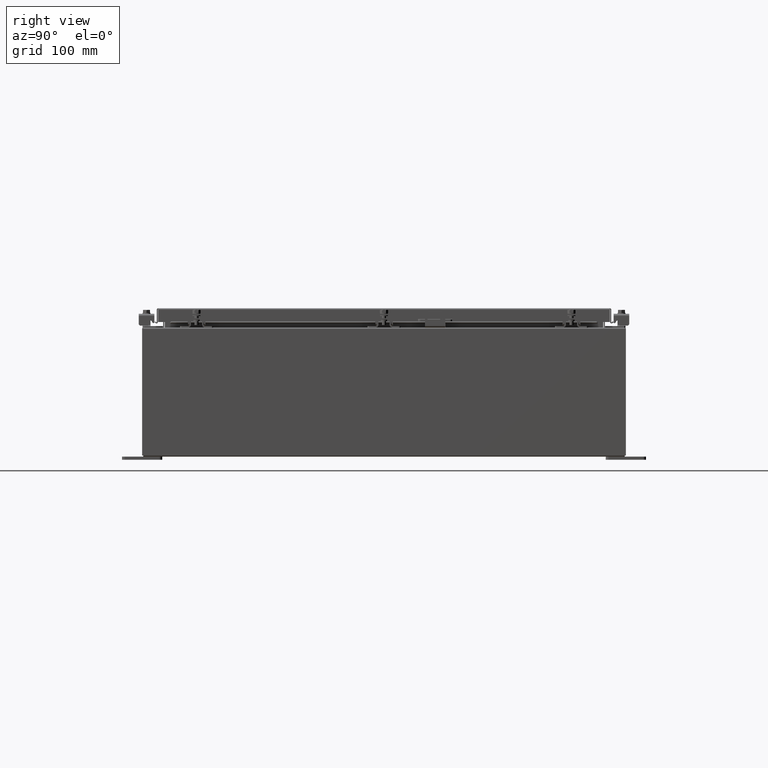
[diagram: clean part render]
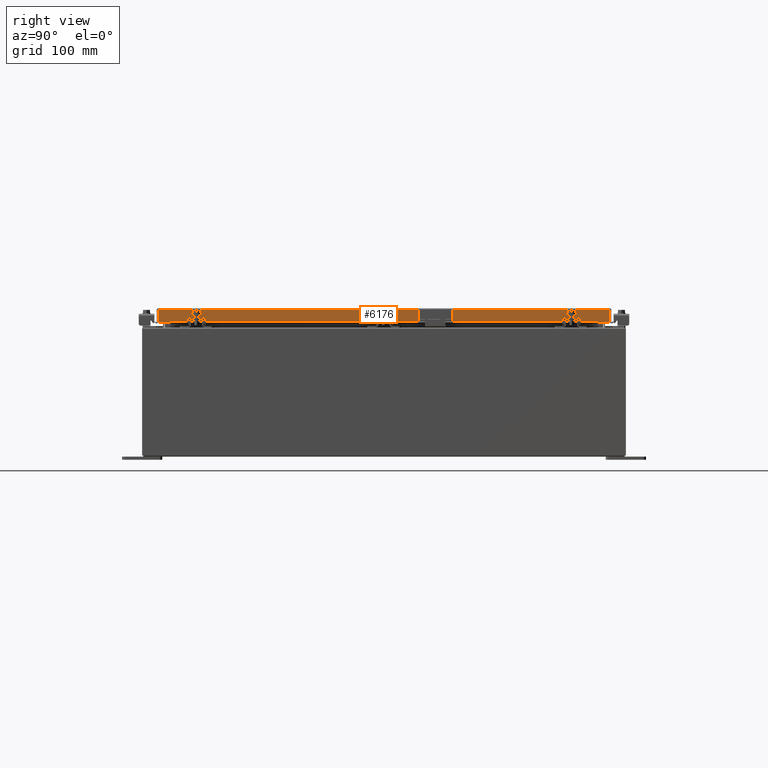
[diagram: same view with one face highlighted and labeled with its STEP entity id]
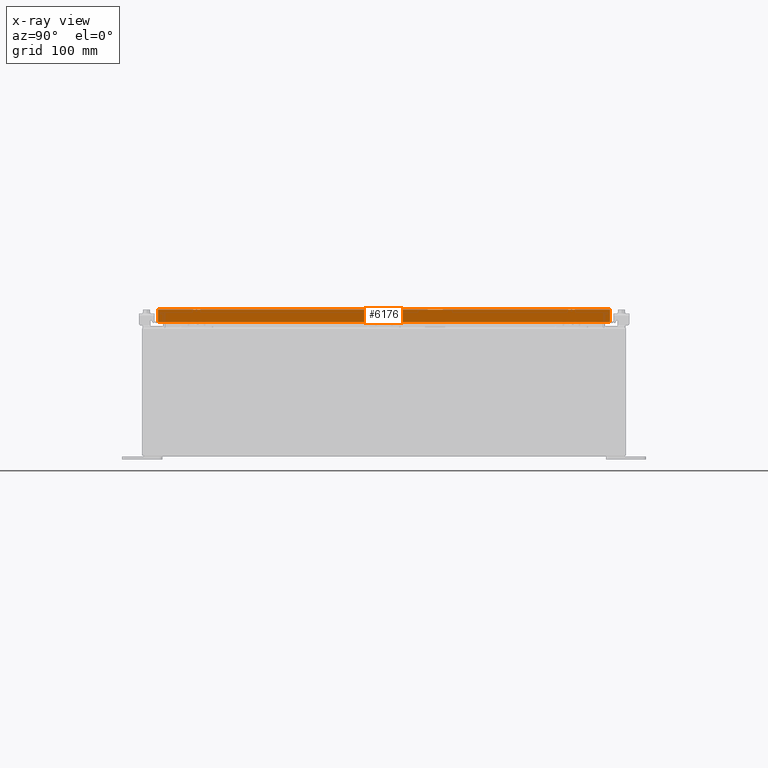
[diagram: x-ray of the same camera — body ghosted, the highlighted face saturated]
A machine part, right view. The second image highlights one B-rep face of the part: STEP entity #6176.
The next image is the same camera in x-ray: the body ghosted, the highlighted face saturated — about 0% of this face is hidden behind the body in this view.
In plain terms, the highlighted planar face has unit normal (1, 0, 0).
Its self-contained STEP definition (entity closure, byte-faithful):
#2490 = AXIS2_PLACEMENT_3D ( 'NONE', #21424, #3778, #27253 ) ;
#2683 = DIRECTION ( 'NONE',  ( 0.0000000000000000000, -1.000000000000000000, 0.0000000000000000000 ) ) ;
#2766 = CARTESIAN_POINT ( 'NONE',  ( 14.07799999999999400, -13.25515786437626700, -0.8500000000000013100 ) ) ;
#2773 = VERTEX_POINT ( 'NONE', #33051 ) ;
#3778 = DIRECTION ( 'NONE',  ( 1.000000000000000000, 0.0000000000000000000, 2.818880942772360100E-015 ) ) ;
#5428 = EDGE_CURVE ( 'NONE', #2773, #14975, #23974, .T. ) ;
#5608 = VERTEX_POINT ( 'NONE', #22509 ) ;
#6082 = VERTEX_POINT ( 'NONE', #21941 ) ;
#6176 = ADVANCED_FACE ( 'NONE', ( #32352 ), #9486, .T. ) ;
#7777 = LINE ( 'NONE', #25138, #38469 ) ;
#7814 = VECTOR ( 'NONE', #32306, 39.37007874015748100 ) ;
#7959 = DIRECTION ( 'NONE',  ( 0.0000000000000000000, -1.000000000000000000, 0.0000000000000000000 ) ) ;
#9323 = VERTEX_POINT ( 'NONE', #2766 ) ;
#9486 = PLANE ( 'NONE',  #2490 ) ;
#9591 = EDGE_CURVE ( 'NONE', #6082, #2773, #25347, .T. ) ;
#11562 = ORIENTED_EDGE ( 'NONE', *, *, #5428, .T. ) ;
#11653 = EDGE_CURVE ( 'NONE', #5608, #14975, #21071, .T. ) ;
#12250 = VECTOR ( 'NONE', #30606, 39.37007874015748100 ) ;
#12863 = CARTESIAN_POINT ( 'NONE',  ( 14.07800000000000300, 14.00515786437626400, 1.377425142304046000E-013 ) ) ;
#12959 = ORIENTED_EDGE ( 'NONE', *, *, #27103, .F. ) ;
#13039 = VECTOR ( 'NONE', #7959, 39.37007874015748100 ) ;
#13694 = EDGE_CURVE ( 'NONE', #9323, #5608, #7777, .T. ) ;
#14975 = VERTEX_POINT ( 'NONE', #34072 ) ;
#15502 = VERTEX_POINT ( 'NONE', #27479 ) ;
#15650 = LINE ( 'NONE', #29436, #7814 ) ;
#15838 = DIRECTION ( 'NONE',  ( -2.818880942772360100E-015, -6.982962677686265900E-015, 1.000000000000000000 ) ) ;
#16298 = DIRECTION ( 'NONE',  ( 0.0000000000000000000, -1.000000000000000000, 0.0000000000000000000 ) ) ;
#17440 = VECTOR ( 'NONE', #15838, 39.37007874015748100 ) ;
#17839 = ORIENTED_EDGE ( 'NONE', *, *, #13694, .F. ) ;
#21071 = LINE ( 'NONE', #36494, #12250 ) ;
#21424 = CARTESIAN_POINT ( 'NONE',  ( 14.07800000000000300, 0.0000000000000000000, 3.994501956836086900E-014 ) ) ;
#21941 = CARTESIAN_POINT ( 'NONE',  ( 14.07800000000000500, 14.00515786437626900, -0.8499999999999996400 ) ) ;
#22509 = CARTESIAN_POINT ( 'NONE',  ( 14.07800000000000500, -14.00515786437626900, -0.8499999999999996400 ) ) ;
#23063 = VECTOR ( 'NONE', #2683, 39.37007874015748100 ) ;
#23687 = EDGE_CURVE ( 'NONE', #15502, #9323, #15650, .T. ) ;
#23974 = LINE ( 'NONE', #26499, #23063 ) ;
#25138 = CARTESIAN_POINT ( 'NONE',  ( 14.07800000000000500, -14.09400000000000300, -0.8499999999999996400 ) ) ;
#25347 = LINE ( 'NONE', #12863, #17440 ) ;
#26236 = EDGE_LOOP ( 'NONE', ( #34570, #17839, #37766, #12959, #29681, #11562 ) ) ;
#26499 = CARTESIAN_POINT ( 'NONE',  ( 14.07800000000000300, 0.0000000000000000000, -0.08770000000000007000 ) ) ;
#27103 = EDGE_CURVE ( 'NONE', #6082, #15502, #35861, .T. ) ;
#27253 = DIRECTION ( 'NONE',  ( 2.818880942772360100E-015, 0.0000000000000000000, -1.000000000000000000 ) ) ;
#27479 = CARTESIAN_POINT ( 'NONE',  ( 14.07799999999999400, 13.25515786437626200, -0.8500000000000013100 ) ) ;
#28699 = CARTESIAN_POINT ( 'NONE',  ( 14.07800000000000500, -14.09400000000000300, -0.8499999999999996400 ) ) ;
#29436 = CARTESIAN_POINT ( 'NONE',  ( 14.07799999999999400, 13.25515786437626700, -0.8500000000000013100 ) ) ;
#29681 = ORIENTED_EDGE ( 'NONE', *, *, #9591, .T. ) ;
#30606 = DIRECTION ( 'NONE',  ( -2.818880942772360100E-015, -6.982962677686265900E-015, 1.000000000000000000 ) ) ;
#32306 = DIRECTION ( 'NONE',  ( 0.0000000000000000000, -1.000000000000000000, 0.0000000000000000000 ) ) ;
#32352 = FACE_OUTER_BOUND ( 'NONE', #26236, .T. ) ;
#33051 = CARTESIAN_POINT ( 'NONE',  ( 14.07800000000000300, 14.00515786437626200, -0.08770000000000007000 ) ) ;
#34072 = CARTESIAN_POINT ( 'NONE',  ( 14.07800000000000300, -14.00515786437627200, -0.08770000000000007000 ) ) ;
#34570 = ORIENTED_EDGE ( 'NONE', *, *, #11653, .F. ) ;
#35861 = LINE ( 'NONE', #28699, #13039 ) ;
#36494 = CARTESIAN_POINT ( 'NONE',  ( 14.07800000000000300, -14.00515786437627200, -0.07469999999999978000 ) ) ;
#37766 = ORIENTED_EDGE ( 'NONE', *, *, #23687, .F. ) ;
#38469 = VECTOR ( 'NONE', #16298, 39.37007874015748100 ) ;